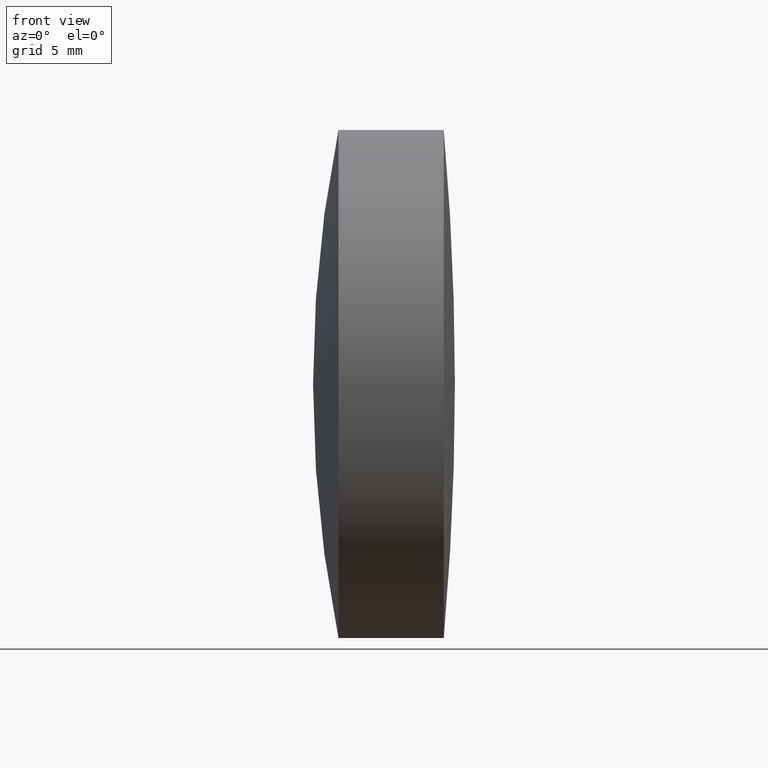
[diagram: clean part render]
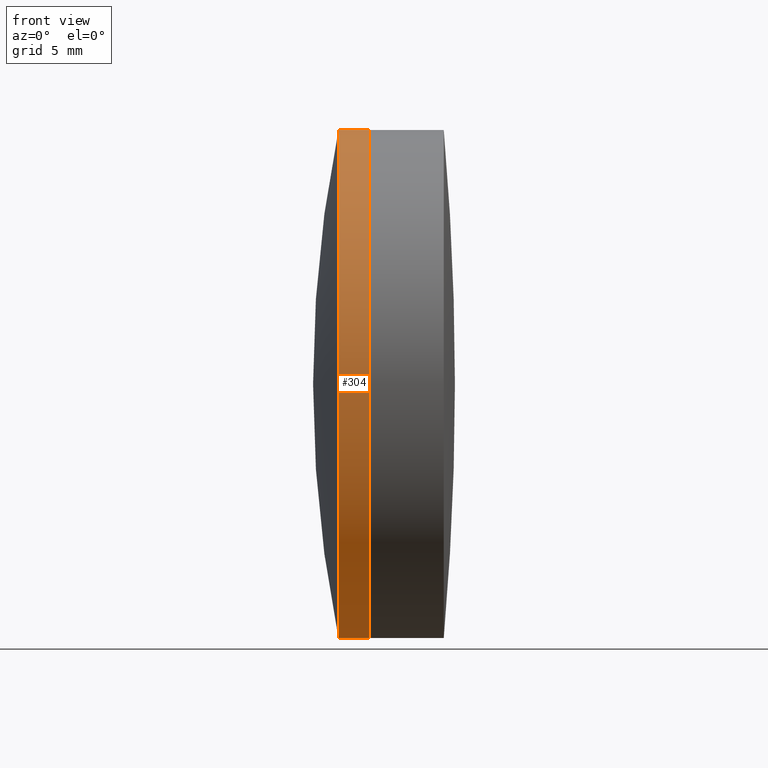
[diagram: same view with one face highlighted and labeled with its STEP entity id]
A machine part, front view. The second image highlights one B-rep face of the part: STEP entity #304.
In plain terms, the highlighted cylindrical surface (partial cylindrical patch) has radius 12.5 mm, axis along (-1, -0, -0).
Its self-contained STEP definition (entity closure, byte-faithful):
#7 = AXIS2_PLACEMENT_3D ( 'NONE', #66, #89, #286 ) ;
#12 = AXIS2_PLACEMENT_3D ( 'NONE', #269, #173, #129 ) ;
#20 = DIRECTION ( 'NONE',  ( -1.000000000000000000, -0.0000000000000000000, -0.0000000000000000000 ) ) ;
#29 = LINE ( 'NONE', #101, #231 ) ;
#33 = CARTESIAN_POINT ( 'NONE',  ( -9.702612178336682500, 1.530808498934190100E-015, -12.49999999999998900 ) ) ;
#45 = CYLINDRICAL_SURFACE ( 'NONE', #12, 12.49999999999998900 ) ;
#60 = DIRECTION ( 'NONE',  ( -1.000000000000000000, -0.0000000000000000000, -0.0000000000000000000 ) ) ;
#66 = CARTESIAN_POINT ( 'NONE',  ( 60.20977468710700000, 0.0000000000000000000, 0.0000000000000000000 ) ) ;
#74 = VERTEX_POINT ( 'NONE', #97 ) ;
#89 = DIRECTION ( 'NONE',  ( -1.000000000000000000, -0.0000000000000000000, -0.0000000000000000000 ) ) ;
#90 = FACE_OUTER_BOUND ( 'NONE', #168, .T. ) ;
#94 = ORIENTED_EDGE ( 'NONE', *, *, #288, .F. ) ;
#97 = CARTESIAN_POINT ( 'NONE',  ( 60.20977468710700000, 0.0000000000000000000, 12.49999999999998900 ) ) ;
#101 = CARTESIAN_POINT ( 'NONE',  ( -9.702612178336682500, 0.0000000000000000000, 12.49999999999998900 ) ) ;
#103 = CARTESIAN_POINT ( 'NONE',  ( 58.67124487653986600, 1.530808498934192300E-015, -12.50000000000003700 ) ) ;
#123 = CARTESIAN_POINT ( 'NONE',  ( 58.67124487653985900, 0.0000000000000000000, 0.0000000000000000000 ) ) ;
#129 = DIRECTION ( 'NONE',  ( 0.0000000000000000000, 0.0000000000000000000, 1.000000000000000000 ) ) ;
#139 = CIRCLE ( 'NONE', #7, 12.49999999999998900 ) ;
#142 = VERTEX_POINT ( 'NONE', #254 ) ;
#143 = VERTEX_POINT ( 'NONE', #181 ) ;
#159 = VERTEX_POINT ( 'NONE', #103 ) ;
#162 = VECTOR ( 'NONE', #60, 1000.000000000000000 ) ;
#168 = EDGE_LOOP ( 'NONE', ( #94, #240, #264, #334 ) ) ;
#173 = DIRECTION ( 'NONE',  ( -1.000000000000000000, -0.0000000000000000000, -0.0000000000000000000 ) ) ;
#175 = DIRECTION ( 'NONE',  ( 0.0000000000000000000, 0.0000000000000000000, 1.000000000000000000 ) ) ;
#181 = CARTESIAN_POINT ( 'NONE',  ( 60.20977468710700000, 1.530808498934190100E-015, -12.49999999999998900 ) ) ;
#190 = LINE ( 'NONE', #33, #162 ) ;
#213 = DIRECTION ( 'NONE',  ( -1.000000000000000000, -0.0000000000000000000, -0.0000000000000000000 ) ) ;
#231 = VECTOR ( 'NONE', #20, 1000.000000000000000 ) ;
#240 = ORIENTED_EDGE ( 'NONE', *, *, #266, .T. ) ;
#254 = CARTESIAN_POINT ( 'NONE',  ( 58.67124487653986600, 0.0000000000000000000, 12.50000000000000700 ) ) ;
#264 = ORIENTED_EDGE ( 'NONE', *, *, #312, .T. ) ;
#266 = EDGE_CURVE ( 'NONE', #143, #74, #139, .T. ) ;
#269 = CARTESIAN_POINT ( 'NONE',  ( -9.702612178336682500, 0.0000000000000000000, 0.0000000000000000000 ) ) ;
#286 = DIRECTION ( 'NONE',  ( 0.0000000000000000000, 0.0000000000000000000, 1.000000000000000000 ) ) ;
#288 = EDGE_CURVE ( 'NONE', #143, #159, #190, .T. ) ;
#292 = AXIS2_PLACEMENT_3D ( 'NONE', #123, #213, #175 ) ;
#294 = EDGE_CURVE ( 'NONE', #159, #142, #322, .T. ) ;
#304 = ADVANCED_FACE ( 'NONE', ( #90 ), #45, .T. ) ;
#312 = EDGE_CURVE ( 'NONE', #74, #142, #29, .T. ) ;
#322 = CIRCLE ( 'NONE', #292, 12.49999999999998900 ) ;
#334 = ORIENTED_EDGE ( 'NONE', *, *, #294, .F. ) ;